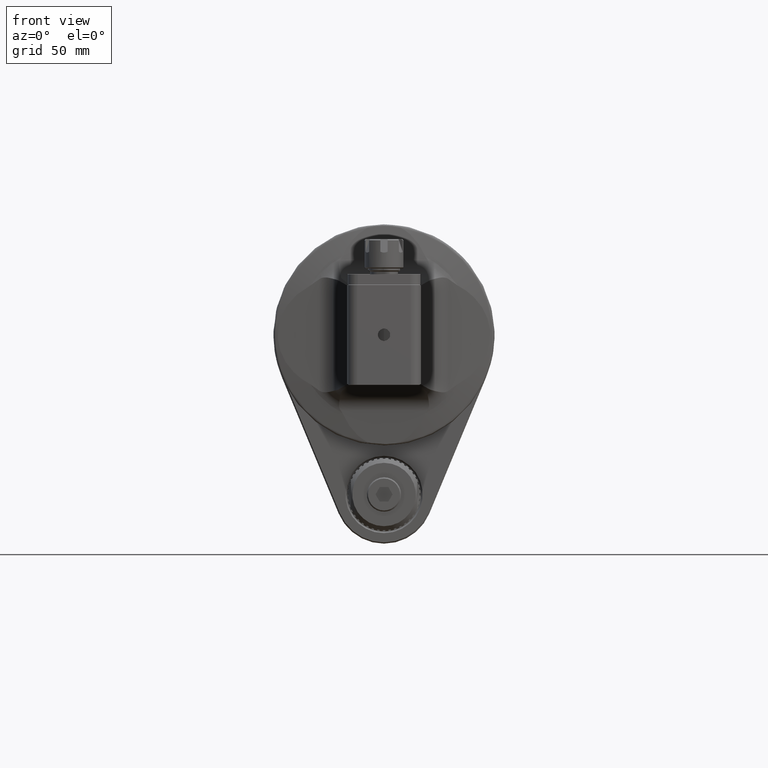
[diagram: clean part render]
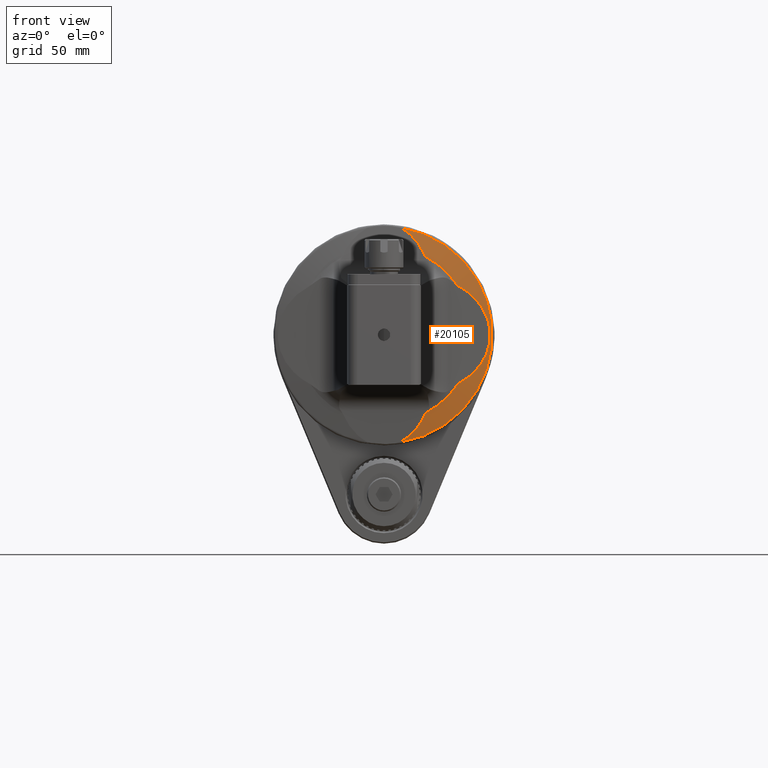
[diagram: same view with one face highlighted and labeled with its STEP entity id]
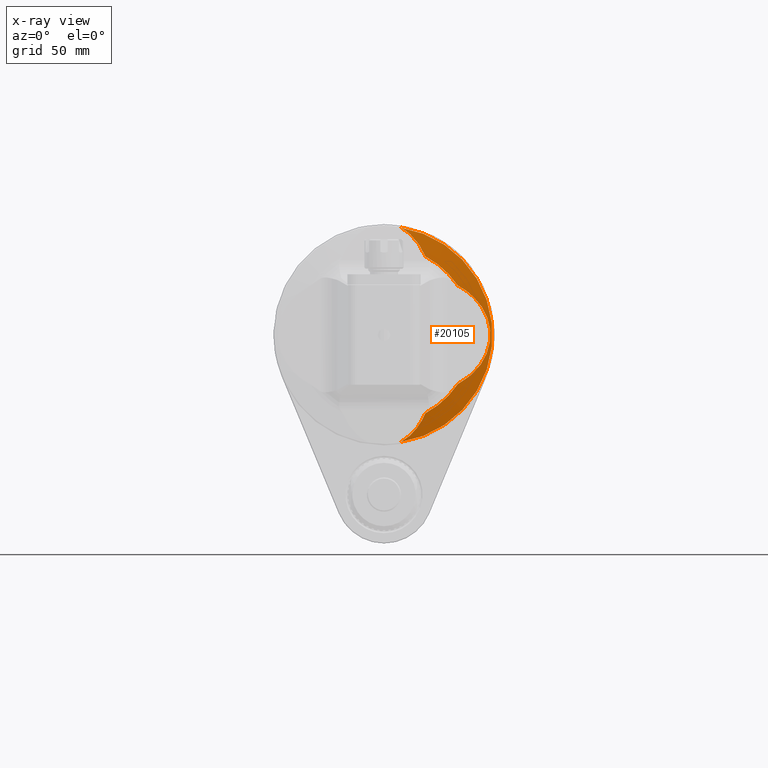
[diagram: x-ray of the same camera — body ghosted, the highlighted face saturated]
A machine part, front view. The second image highlights one B-rep face of the part: STEP entity #20105.
The next image is the same camera in x-ray: the body ghosted, the highlighted face saturated — about 0% of this face is hidden behind the body in this view.
In plain terms, the highlighted conical surface has half-angle 79.875 deg.
Its self-contained STEP definition (entity closure, byte-faithful):
#377=ELLIPSE('',#21795,27.0482605618794,19.4932377924185);
#380=ELLIPSE('',#21806,27.0482605618794,19.4932377924185);
#381=ELLIPSE('',#21835,28.2530290729761,23.684193051721);
#528=CONICAL_SURFACE('',#21832,40.13996082534,1.39408747072482);
#4966=FACE_OUTER_BOUND('',#6193,.T.);
#6193=EDGE_LOOP('',(#14915,#14916,#14917,#14918,#14919,#14920));
#7622=CIRCLE('',#21811,44.17579063848);
#7633=CIRCLE('',#21833,36.10413101219);
#7634=CIRCLE('',#21834,36.10413101219);
#8821=VERTEX_POINT('',#34119);
#8822=VERTEX_POINT('',#34151);
#8832=VERTEX_POINT('',#34534);
#8833=VERTEX_POINT('',#34557);
#8853=VERTEX_POINT('',#34912);
#8854=VERTEX_POINT('',#34914);
#11081=EDGE_CURVE('',#8821,#8822,#377,.T.);
#11098=EDGE_CURVE('',#8832,#8833,#380,.T.);
#11104=EDGE_CURVE('',#8833,#8821,#7622,.T.);
#11130=EDGE_CURVE('',#8853,#8822,#7633,.T.);
#11131=EDGE_CURVE('',#8832,#8854,#7634,.T.);
#11132=EDGE_CURVE('',#8853,#8854,#381,.T.);
#14915=ORIENTED_EDGE('',*,*,#11130,.T.);
#14916=ORIENTED_EDGE('',*,*,#11081,.F.);
#14917=ORIENTED_EDGE('',*,*,#11104,.F.);
#14918=ORIENTED_EDGE('',*,*,#11098,.F.);
#14919=ORIENTED_EDGE('',*,*,#11131,.T.);
#14920=ORIENTED_EDGE('',*,*,#11132,.F.);
#20105=ADVANCED_FACE('',(#4966),#528,.T.);
#21795=AXIS2_PLACEMENT_3D('',#34152,#25148,#25149);
#21806=AXIS2_PLACEMENT_3D('',#34558,#25172,#25173);
#21811=AXIS2_PLACEMENT_3D('',#34601,#25182,#25183);
#21832=AXIS2_PLACEMENT_3D('',#34911,#25233,#25234);
#21833=AXIS2_PLACEMENT_3D('',#34913,#25235,#25236);
#21834=AXIS2_PLACEMENT_3D('',#34915,#25237,#25238);
#21835=AXIS2_PLACEMENT_3D('',#34916,#25239,#25240);
#25148=DIRECTION('center_axis',(0.,-0.992546151641327,-0.121869343405103));
#25149=DIRECTION('ref_axis',(-2.46276026974508E-15,0.121869343405102,-0.992546151641328));
#25172=DIRECTION('center_axis',(0.,-0.992546151641327,0.121869343405103));
#25173=DIRECTION('ref_axis',(-9.85104107898032E-16,0.121869343405103,0.992546151641328));
#25182=DIRECTION('center_axis',(0.,1.,0.));
#25183=DIRECTION('ref_axis',(0.152045707799498,0.,0.988373463190787));
#25233=DIRECTION('center_axis',(0.,1.,0.));
#25234=DIRECTION('ref_axis',(0.,0.,1.));
#25235=DIRECTION('center_axis',(0.,1.,0.));
#25236=DIRECTION('ref_axis',(0.829982324767026,0.,-0.557789692065318));
#25237=DIRECTION('center_axis',(0.,1.,0.));
#25238=DIRECTION('ref_axis',(0.467113337222199,0.,0.884197449775298));
#25239=DIRECTION('center_axis',(0.095845752520218,-0.995396198367179,0.));
#25240=DIRECTION('ref_axis',(0.995396198367179,0.0958457525202182,6.28731466212708E-16));
#34119=CARTESIAN_POINT('',(6.716739355231,90.85281975687,-43.66217918255));
#34151=CARTESIAN_POINT('',(16.86472112461,89.41145196646,-31.92318056734));
#34152=CARTESIAN_POINT('Origin',(-1.33226762955019E-14,87.7583298088026,
-18.4595810275838));
#34534=CARTESIAN_POINT('',(16.86472112461,89.41145196646,31.92318056734));
#34557=CARTESIAN_POINT('',(6.716739355231,90.85281975687,43.66217918255));
#34558=CARTESIAN_POINT('Origin',(0.,87.7583298088026,18.4595810275838));
#34601=CARTESIAN_POINT('Origin',(0.,90.85281975687,0.));
#34911=CARTESIAN_POINT('Origin',(0.,90.13213586167,0.));
#34912=CARTESIAN_POINT('',(29.96579059119,89.41145196646,-20.13851211958));
#34913=CARTESIAN_POINT('Origin',(0.,89.41145196646,0.));
#34914=CARTESIAN_POINT('',(29.96579059119,89.41145196646,20.13851211958));
#34915=CARTESIAN_POINT('Origin',(0.,89.41145196646,0.));
#34916=CARTESIAN_POINT('Origin',(15.1644238618566,87.9862424520727,0.));